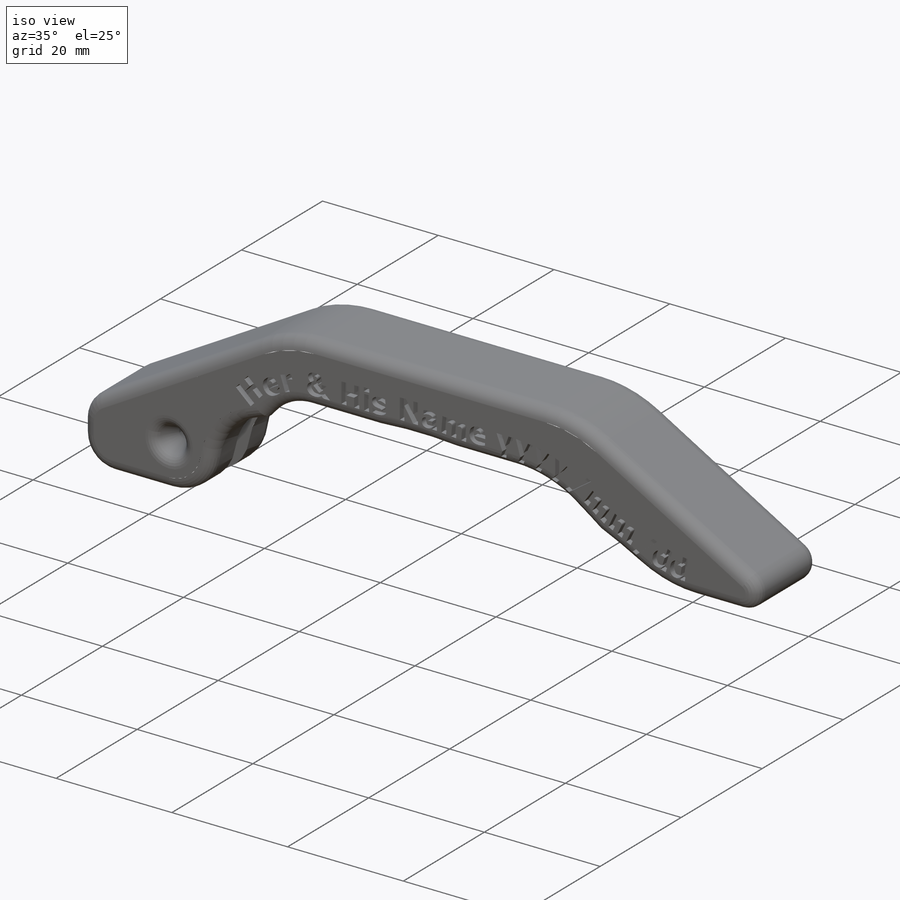
[diagram: iso view]
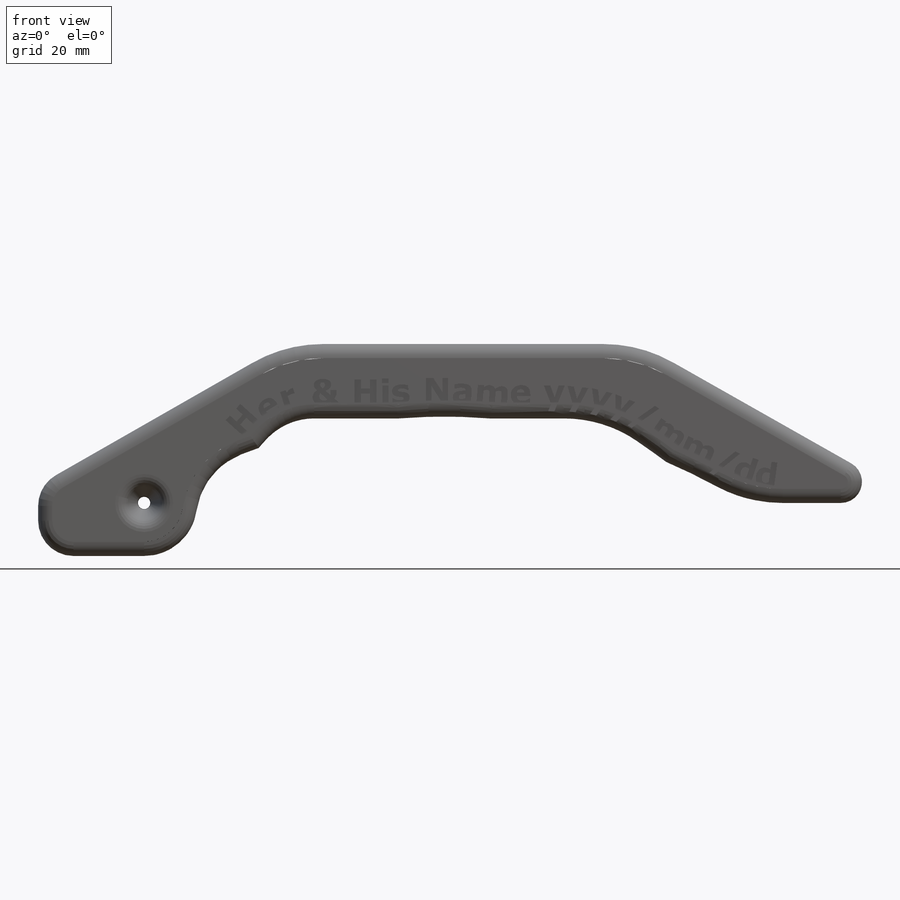
[diagram: front view]
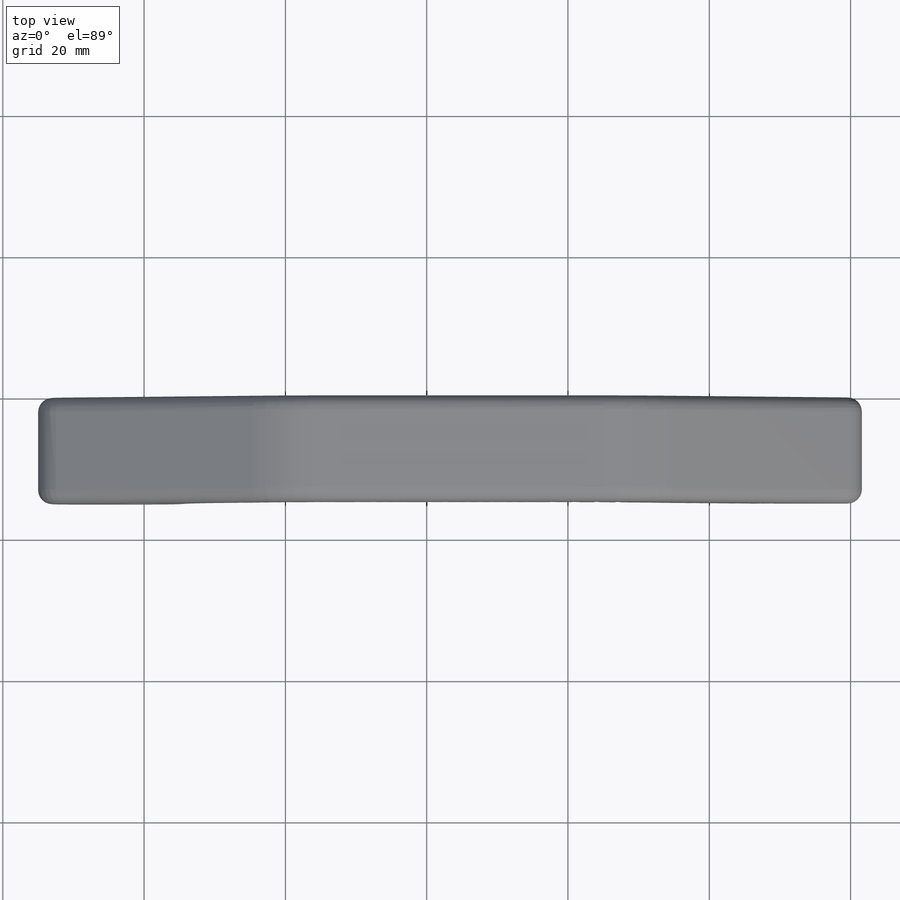
[diagram: top view]
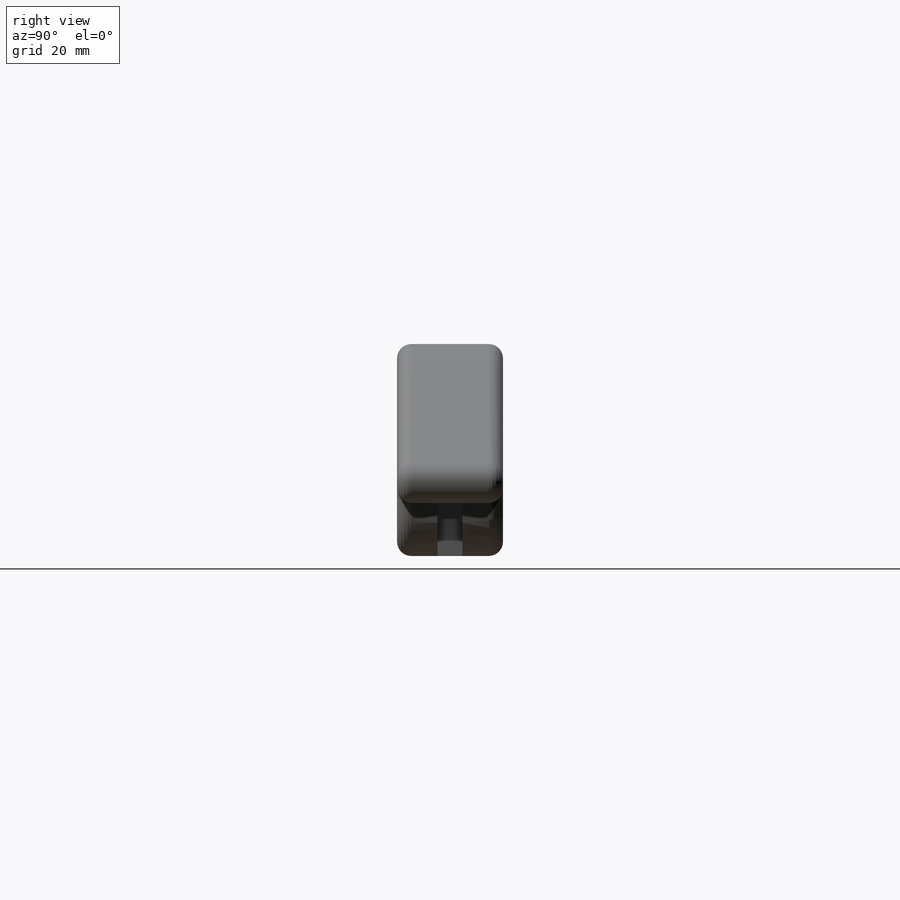
[diagram: right view]
SOLIDWORKS PART (.sldprt)
format: sldprt  version: not decoded by parser v0  size: 939,008 bytes
history: native  units: mm
features: sketch x5, chamfer x3, cut_extrude x3, material x1, extrude x1, plane x1, cut_revolve x1, fillet x1 (+13 scaffold rows collapsed)
feature tree (29):
  scaffold x13  (default folders/planes/origin — collapsed)
  material  "Material <not specified>"
  sketch  "Sketch1"  dims[c1.D4=15.0mm c1.D5=10.0mm c1.D9=20.0mm c1.D10=1.75mm c1.D12=5.0mm c1.D13=3.0mm c1.D14=20.0mm c1.D1=45.0mm c1.D2=18.0mm c1.D3=20.0mm c1.D6=30.0mm c1.D7=15.0mm c1.D8=10.0mm c1.D11=25.0mm c2.D12=20.0mm]
  extrude  "Boss-Extrude1"  Depth=15mm
  plane  "Plane1"
  sketch  "Sketch2"  dims[D4=20.0mm D5=10.0mm D1=45.0mm D2=18.0mm D3=13.0mm]
  cut_revolve  "Cut-Revolve1"  Angle=360deg
  chamfer  "Chamfer1"  Distance=2mm
  chamfer  "Chamfer2"  Distance=2mm Angle=45deg
  fillet  "Fillet2"  Radius=2mm
  sketch  "Sketch4"  dims[c1.D3=5.0mm c1.D1=5.0mm c1.D2=5.0mm c2.D3=~12.843613mm]
  cut_extrude  "Cut-Extrude2"  Depth=1.75mm
  sketch  "Sketch5"
  cut_extrude  "Cut-Extrude3"  Depth=1mm
  chamfer  "Chamfer3"  Distance=1mm Angle=20deg
  sketch  "Sketch6"  dims[D1=1.9mm]
  cut_extrude  "Cut-Extrude4"  [1 undecoded]
decode coverage: 12 of 14 modeling features carry decoded parameters
note: ~ marks probable driven/reference dimensions
note: 1 parameter value undecoded
note: suppression state not decoded; provenance and decode notes live in map.json
